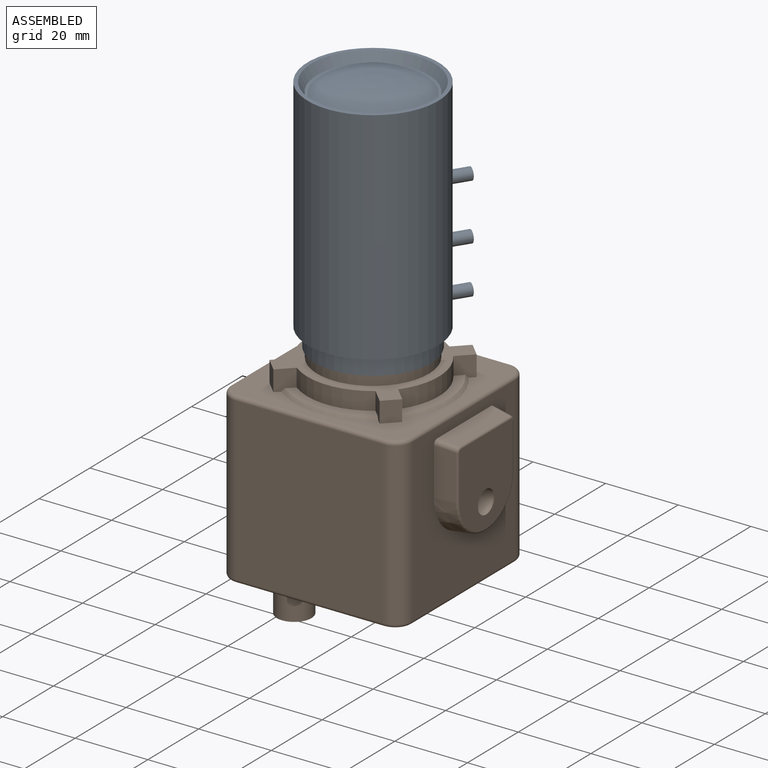
[diagram: assembled view]
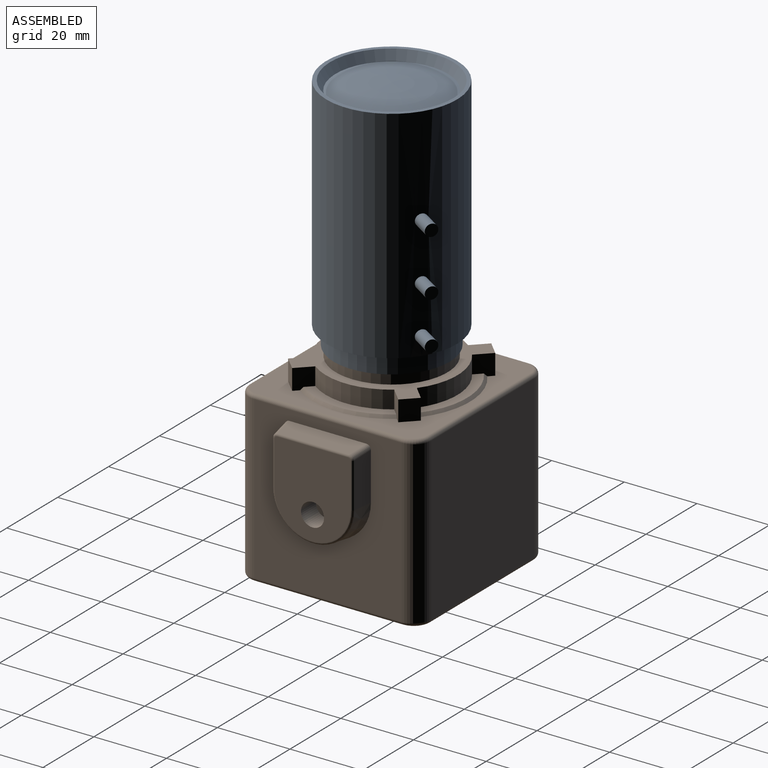
[diagram: assembled view, second angle]
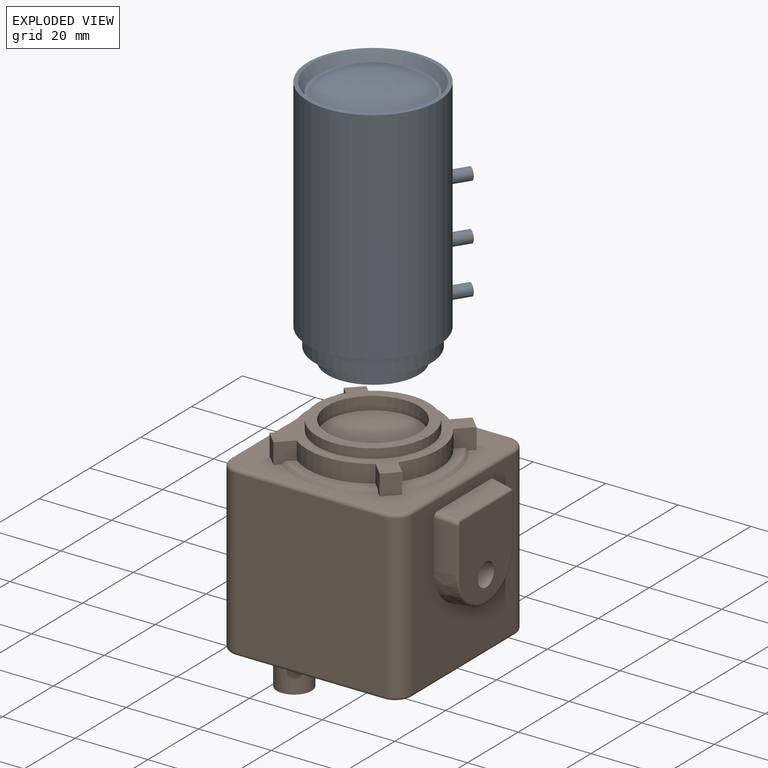
[diagram: exploded view]
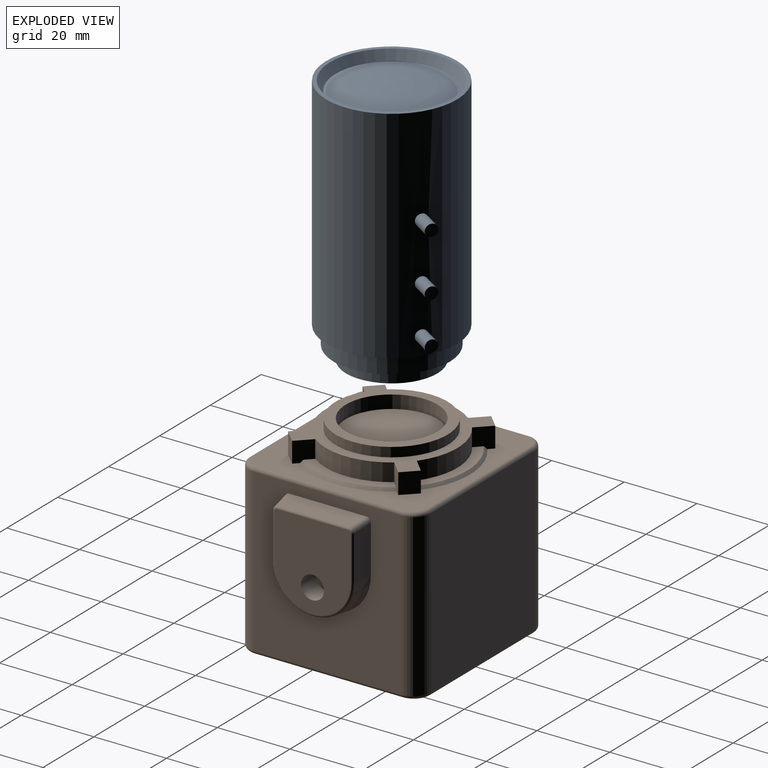
[diagram: exploded view, second angle]
ASSEMBLY  parts=2 mates=2
PART A: 15 faces, bbox 41.9x36x69.6 mm
  f0: cylinder r=18mm len=60.83mm, axis (0,0,-1), area 6852.8mm2, adj f1,f2,f9,f11,f13
  f1: plane 35.99x35.99mm, normal (0,0,1), area 213mm2, adj f0,f3
  f2: plane 35.99x35.99mm, normal (0,0,-1), area 117.8mm2, adj f0,f7
  f3: cylinder r=16mm len=32mm, axis (0,0,-1), area 498mm2, adj f1,f4
  f4: plane 32x32mm, normal (0,0,1), area 303.8mm2, adj f3,f5
  f5: cylinder r=12.62mm len=25.25mm, axis (0,0,-1), area 302.2mm2, adj f4,f6
  f6: plane 25.25x25.25mm, normal (0,0,1), area 500.6mm2, adj f5
  f7: cone r=15.46mm half-angle=30deg, axis (0,0,-1), area 298.3mm2, adj f2,f8
  f8: sphere r=59.8mm, area 763.5mm2, adj f7
  f9: cylinder r=1.65mm len=5.96mm, axis (-1,0,0), area 61.4mm2, adj f0,f10
  f10: plane 3.3x3.3mm, normal (1,0,0), area 8.6mm2, adj f9
  f11: cylinder r=1.65mm len=5.96mm, axis (-1,0,0), area 61.4mm2, adj f0,f12
  f12: plane 3.3x3.3mm, normal (1,0,0), area 8.6mm2, adj f11
  f13: cylinder r=1.65mm len=5.96mm, axis (-1,0,0), area 61.4mm2, adj f0,f14
  f14: plane 3.3x3.3mm, normal (1,0,0), area 8.6mm2, adj f13
PART B: 100 faces, bbox 56.6x51x64.8 mm
  f0: plane 45.34x45.34mm, normal (0,0,-1), area 1854.9mm2, adj f45,f46,f47,f48,f49,f50,f51,f52
  f1: plane 44.5x40.61mm, normal (1,0,0), area 1247.7mm2, adj f36,f37,f38,f39,f41,f44,f60,f64
  f2: plane 48.13x48.13mm, normal (0,0,1), area 804.4mm2, adj f7,f9,f10,f11,f13,f14,f15,f17
  f3: plane 44.5x40.61mm, normal (0,1,0), area 1807.4mm2, adj f41,f42,f56,f61
  f4: plane 44.5x40.61mm, normal (-1,0,0), area 1807.4mm2, adj f42,f43,f53,f65
  f5: plane 44.5x40.61mm, normal (0,-1,0), area 1807.4mm2, adj f43,f44,f57,f68
  f6: plane 48.13x48.13mm, normal (0,0,-1), area 253.8mm2, adj f45,f46,f47,f48,f49,f50,f51,f52
  f7: plane 5.67x3.76mm, normal (-0.71,-0.71,0), area 27.8mm2, adj f2,f8,f22,f23,f25,f28
  f8: cylinder r=18.14mm len=21.72mm, axis (0,0,-1), area 114.2mm2, adj f7,f9,f23,f25
  f9: plane 5.67x3.76mm, normal (-0.71,0.71,0), area 27.8mm2, adj f2,f8,f10,f23,f25,f28
  f10: plane 5.66x3.66mm, normal (-0.71,-0.71,0), area 29.3mm2, adj f2,f9,f11,f23
  f11: plane 5.67x3.76mm, normal (0.71,-0.71,0), area 27.8mm2, adj f2,f10,f12,f23,f26,f31
  f12: cylinder r=18.14mm len=21.72mm, axis (0,0,-1), area 114.2mm2, adj f11,f13,f23,f26
  f13: plane 5.67x3.76mm, normal (-0.71,-0.71,0), area 27.8mm2, adj f2,f12,f14,f23,f26,f31
  f14: plane 5.66x3.66mm, normal (0.71,-0.71,0), area 29.3mm2, adj f2,f13,f15,f23
  f15: plane 5.67x3.76mm, normal (0.71,0.71,0), area 27.8mm2, adj f2,f14,f16,f23,f27,f30
  f16: cylinder r=18.14mm len=21.72mm, axis (0,0,-1), area 114.2mm2, adj f15,f17,f23,f27
  f17: plane 5.67x3.76mm, normal (0.71,-0.71,0), area 27.8mm2, adj f2,f16,f18,f23,f27,f30
  f18: plane 5.66x3.66mm, normal (0.71,0.71,0), area 29.3mm2, adj f2,f17,f19,f23
  f19: plane 5.67x3.76mm, normal (-0.71,0.71,0), area 27.8mm2, adj f2,f18,f20,f23,f24,f29
  f20: cylinder r=18.14mm len=21.72mm, axis (0,0,-1), area 114.2mm2, adj f19,f21,f23,f24
  f21: plane 5.67x3.76mm, normal (0.71,0.71,0), area 27.8mm2, adj f2,f20,f22,f23,f24,f29
  f22: plane 5.66x3.66mm, normal (-0.71,0.71,0), area 29.3mm2, adj f2,f7,f21,f23
  f23: plane 36.57x36.57mm, normal (0,0,1), area 395.3mm2, adj f7,f8,f9,f10,f11,f12,f13,f14
  f24: plane 25.56x6.3mm, normal (0,0,1), area 68.4mm2, adj f19,f20,f21,f29
  f25: plane 25.56x6.3mm, normal (0,0,1), area 68.4mm2, adj f7,f8,f9,f28
  f26: plane 25.56x6.3mm, normal (0,0,1), area 68.4mm2, adj f11,f12,f13,f31
  f27: plane 25.56x6.3mm, normal (0,0,1), area 68.4mm2, adj f15,f16,f17,f30
  f28: cone r=20.83mm half-angle=45deg, axis (0,0,-1), area 30.3mm2, adj f2,f7,f9,f25
  f29: cone r=20.83mm half-angle=45deg, axis (0,0,-1), area 30.3mm2, adj f2,f19,f21,f24
  f30: cone r=20.83mm half-angle=45deg, axis (0,0,-1), area 30.3mm2, adj f2,f15,f17,f27
  f31: cone r=20.83mm half-angle=45deg, axis (0,0,-1), area 30.3mm2, adj f2,f11,f13,f26
  f32: cylinder r=12.62mm len=25.25mm, axis (0,0,-1), area 286.1mm2, adj f34,f35
  f33: cylinder r=15.41mm len=30.81mm, axis (0,0,-1), area 250.8mm2, adj f23,f34
  f34: plane 30.81x30.81mm, normal (0,0,1), area 244.9mm2, adj f32,f33
  f35: plane 25.25x25.25mm, normal (0,0,1), area 500.6mm2, adj f32
  f36: plane 21.15x5.49mm, normal (0.13,0,0.99), area 113.2mm2, adj f1,f69,f70,f77
  f37: plane 13.12x5.49mm, normal (0.13,-0.99,0), area 70.7mm2, adj f1,f38,f69,f73
  f38: cone r=11.84mm half-angle=7.5deg, axis (-1,0,0), area 199.7mm2, adj f1,f37,f39,f74
  f39: plane 13.12x5.49mm, normal (0.13,0.99,0), area 70.7mm2, adj f1,f38,f70,f76
  f40: plane 23.51x20.97mm, normal (1,0,0), area 413.9mm2, adj f71,f73,f74,f75,f76,f77,f78
  f41: cylinder r=4.78mm len=44.5mm, axis (0,0,1), area 333.8mm2, adj f1,f3,f58,f62
  f42: cylinder r=4.78mm len=44.5mm, axis (0,0,-1), area 333.8mm2, adj f3,f4,f54,f63
  f43: cylinder r=4.78mm len=44.5mm, axis (0,0,1), area 333.8mm2, adj f4,f5,f55,f67
  f44: cylinder r=4.78mm len=44.5mm, axis (0,0,-1), area 333.8mm2, adj f1,f5,f59,f66
  f45: plane 40.61x1.02mm, normal (1,0,0), area 41.3mm2, adj f0,f6,f46,f52
  f46: cylinder r=2.36mm len=2.36mm, axis (0,0,-1), area 3.8mm2, adj f0,f6,f45,f47
  f47: plane 40.61x1.02mm, normal (0,-1,0), area 41.3mm2, adj f0,f6,f46,f48
  f48: cylinder r=2.36mm len=2.36mm, axis (0,0,-1), area 3.8mm2, adj f0,f6,f47,f49
  f49: plane 40.61x1.02mm, normal (-1,0,0), area 41.3mm2, adj f0,f6,f48,f50
  f50: cylinder r=2.36mm len=2.36mm, axis (0,0,-1), area 3.8mm2, adj f0,f6,f49,f51
  f51: plane 40.61x1.02mm, normal (0,1,0), area 41.3mm2, adj f0,f6,f50,f52
  f52: cylinder r=2.36mm len=2.36mm, axis (0,0,-1), area 3.8mm2, adj f0,f6,f45,f51
  f53: cylinder r=1.02mm len=40.61mm, axis (0,-1,0), area 64.8mm2, adj f4,f6,f54,f55
  f54: torus R=3.76mm, axis (0,0,1), area 11mm2, adj f6,f42,f53,f56
  f55: torus R=3.76mm, axis (0,0,1), area 11mm2, adj f6,f43,f53,f57
  f56: cylinder r=1.02mm len=40.61mm, axis (-1,0,0), area 64.8mm2, adj f3,f6,f54,f58
  f57: cylinder r=1.02mm len=40.61mm, axis (1,0,0), area 64.8mm2, adj f5,f6,f55,f59
  f58: torus R=3.76mm, axis (0,0,1), area 11mm2, adj f6,f41,f56,f60
  f59: torus R=3.76mm, axis (0,0,1), area 11mm2, adj f6,f44,f57,f60
  f60: cylinder r=1.02mm len=40.61mm, axis (0,1,0), area 64.8mm2, adj f1,f6,f58,f59
  f61: cylinder r=1.02mm len=40.61mm, axis (1,0,0), area 64.8mm2, adj f2,f3,f62,f63
  f62: torus R=3.76mm, axis (0,0,1), area 11mm2, adj f2,f41,f61,f64
  f63: torus R=3.76mm, axis (0,0,1), area 11mm2, adj f2,f42,f61,f65
  f64: cylinder r=1.02mm len=40.61mm, axis (0,-1,0), area 64.8mm2, adj f1,f2,f62,f66
  f65: cylinder r=1.02mm len=40.61mm, axis (0,1,0), area 64.8mm2, adj f2,f4,f63,f67
  f66: torus R=3.76mm, axis (0,0,1), area 11mm2, adj f2,f44,f64,f68
  f67: torus R=3.76mm, axis (0,0,1), area 11mm2, adj f2,f43,f65,f68
  f68: cylinder r=1.02mm len=40.61mm, axis (-1,0,0), area 64.8mm2, adj f2,f5,f66,f67
  f69: cylinder r=1.27mm len=5.63mm, axis (-0.98,-0.13,0.13), area 11.1mm2, adj f1,f36,f37,f75
  f70: cylinder r=1.27mm len=5.63mm, axis (-0.98,0.13,0.13), area 11.1mm2, adj f1,f36,f39,f78
  f71: cylinder r=3.17mm len=6.35mm, axis (1,0,0), area 116.5mm2, adj f40,f72
  f72: plane 6.35x6.35mm, normal (1,0,0), area 31.7mm2, adj f71
  f73: cylinder r=0.64mm len=12.39mm, axis (0,0,-1), area 11.3mm2, adj f37,f40,f74,f75
  f74: torus R=10.48mm, axis (1,0,0), area 31.2mm2, adj f38,f40,f73,f76
  f75: bspline ~1.26x1.26mm, area 1.4mm2, adj f40,f69,f73,f77
  f76: cylinder r=0.64mm len=12.39mm, axis (0,0,-1), area 11.3mm2, adj f39,f40,f74,f78
  f77: cylinder r=0.64mm len=19.71mm, axis (0,1,0), area 18mm2, adj f36,f40,f75,f78
  f78: bspline ~1.26x1.26mm, area 1.4mm2, adj f40,f70,f76,f77
  f79: cylinder r=4.76mm len=11.05mm, axis (0,0,1), area 330.6mm2, adj f0,f80
  f80: plane 9.53x9.53mm, normal (0,0,-1), area 17.7mm2, adj f79,f81
  f81: cylinder r=4.13mm len=8.26mm, axis (0,0,-1), area 65.9mm2, adj f80,f82
  f82: plane 8.26x8.26mm, normal (0,0,-1), area 53.5mm2, adj f81
  f83: plane 6.86x4.32mm, normal (1,0,0), area 29.6mm2, adj f0,f85,f87,f89
  f84: plane 6.86x4.32mm, normal (-1,0,0), area 29.6mm2, adj f0,f85,f87,f89
  f85: plane 8.38x4.32mm, normal (0,1,0), area 36.2mm2, adj f0,f83,f84,f87
  f86: cylinder r=3.17mm len=6.35mm, axis (0,0,1), area 86.1mm2, adj f87,f88
  f87: plane 11.05x8.38mm, normal (0,0,-1), area 53.4mm2, adj f83,f84,f85,f86,f89
  f88: plane 6.35x6.35mm, normal (0,0,-1), area 31.7mm2, adj f86
  f89: cylinder r=4.19mm len=8.38mm, axis (0,0,1), area 56.9mm2, adj f0,f83,f84,f87
  f90: cylinder r=1.59mm len=3.18mm, axis (0,0,1), area 25.3mm2, adj f0,f91
  f91: plane 3.18x3.18mm, normal (0,0,-1), area 7.9mm2, adj f90
  f92: cylinder r=1.59mm len=3.18mm, axis (0,0,1), area 25.3mm2, adj f0,f93
  f93: plane 3.18x3.18mm, normal (0,0,-1), area 7.9mm2, adj f92
  f94: cylinder r=1.59mm len=3.18mm, axis (0,0,1), area 25.3mm2, adj f0,f95
  f95: plane 3.18x3.18mm, normal (0,0,-1), area 7.9mm2, adj f94
  f96: cylinder r=1.59mm len=3.18mm, axis (0,0,1), area 25.3mm2, adj f0,f97
  f97: plane 3.18x3.18mm, normal (0,0,-1), area 7.9mm2, adj f96
  f98: cylinder r=1.59mm len=3.18mm, axis (0,0,1), area 25.3mm2, adj f0,f99
  f99: plane 3.18x3.18mm, normal (0,0,-1), area 7.9mm2, adj f98
PLACE A rot(axis=(0.88,0.48,0),180deg) t=(0,0,120.78)mm
PLACE B at identity fixed
MATE planar A.f5 <-> B.f32  axis (0,0,-1) through (0,0,51.18)mm
MATE cylindrical A.f5 <-> B.f32  axis (0,0,-1) through (0,0,51.18)mm
